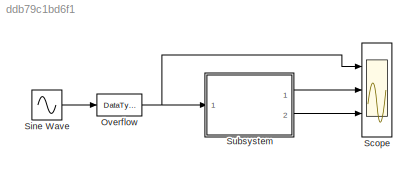
MODEL slx_ddb79c1bd6f1
KIND model
CONFIG AbsTol = auto
CONFIG FixedStep = auto
CONFIG MaxStep = auto
CONFIG MinStep = auto
CONFIG RelTol = 1e-3
CONFIG SampleTimeConstraint = Unconstrained
CONFIG Solver = FixedStepDiscrete
CONFIG SolverMode = Auto
CONFIG SolverName = FixedStepDiscrete
CONFIG StartTime = 0.0
CONFIG StopTime = 10
BLOCK [DataTypeConversion] Overflow
  OutDataTypeStr = fixdt(1,64,32)
  RndMeth = Nearest
  SaturateOnIntegerOverflow = off
BLOCK [Scope] Scope
  NumInputPorts = 3
  Ports = [3]
  ScopeSpecificationString = Simulink.scopes.TimeScopeBlockCfg('CurrentConfiguration', extmgr.ConfigurationSet(extmgr.Configuration('Core','General UI',true),extmgr.Configuration('Core','Source UI',true),extmgr.Configuration('Sources','WiredSimulink',true,'DataLoggingSaveFormat','StructureWithTime','DataLoggingDecimation','1','DataLoggingDecimateData',true),extmgr.Configuration('Visuals','Time Domain',true,'SerializedDisplays...<+3064ch>
BLOCK [Sin] Sine Wave
  Amplitude = 4
  AttributesFormatString = Amplitude = %<Amplitude>
  Ports = [0, 1]
  SampleTime = 1/1000
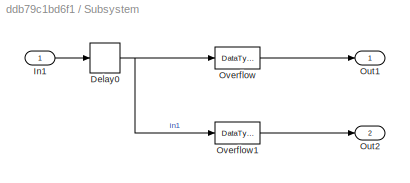
BLOCK [SubSystem] Subsystem
  Ports = [1, 2]
  RequestExecContextInheritance = off
  Variant = off
BLOCK [Delay] Subsystem/Delay0
  DelayLength = 1
  InitialCondition = 0
  InputPortMap = u0
  Ports = [1, 1]
BLOCK [Inport] Subsystem/In1
  IconDisplay = Port number
BLOCK [Outport] Subsystem/Out1
  IconDisplay = Port number
BLOCK [Outport] Subsystem/Out2
  IconDisplay = Port number
  Port = 2
BLOCK [DataTypeConversion] Subsystem/Overflow
  AttributesFormatString = OutDataType: %<OutDataTypeStr>\nSaturation: %<SaturateOnIntegerOverflow>
  OutDataTypeStr = fixdt(1,16,14)
  RndMeth = Nearest
  SaturateOnIntegerOverflow = off
BLOCK [DataTypeConversion] Subsystem/Overflow1
  AttributesFormatString = OutDataType: %<OutDataTypeStr>\nSaturation: %<SaturateOnIntegerOverflow>
  OutDataTypeStr = fixdt(1,16,14)
  RndMeth = Nearest
NET Overflow:1 -> Scope:1, Subsystem:1
LINE Sine Wave:1 -> Overflow:1
NET Subsystem/Delay0:1 -> Subsystem/Overflow1:1, Subsystem/Overflow:1
LINE Subsystem/In1:1 -> Subsystem/Delay0:1
LINE Subsystem/Overflow1:1 -> Subsystem/Out2:1
LINE Subsystem/Overflow:1 -> Subsystem/Out1:1
LINE Subsystem:1 -> Scope:2
LINE Subsystem:2 -> Scope:3
note: NET lines group one-source signal fan-out (src -> all destinations, sorted); 1:1 wires keep LINE
